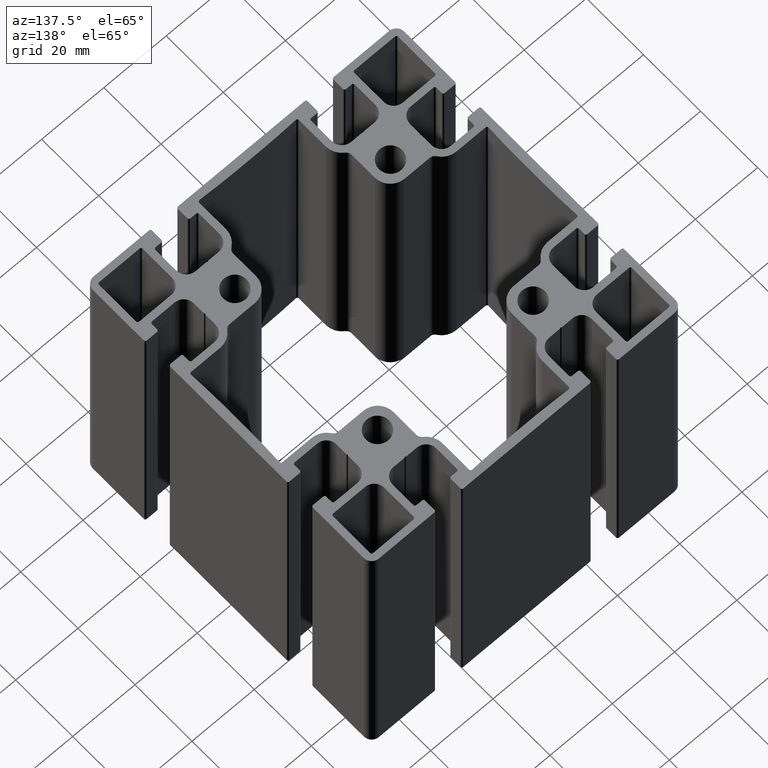
[diagram: clean part render]
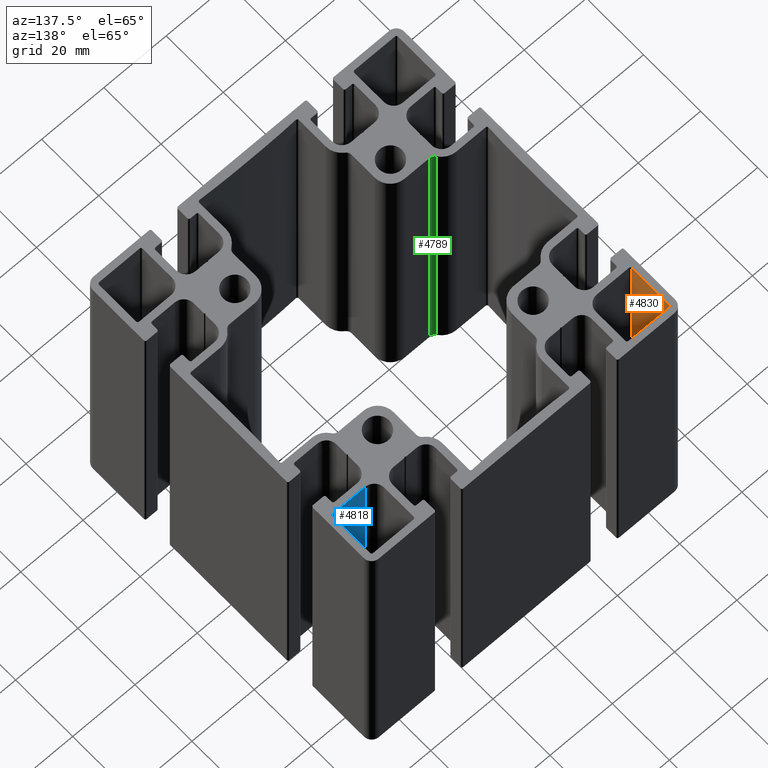
[diagram: same view with three faces highlighted in distinct colors, each labeled with its STEP entity id]
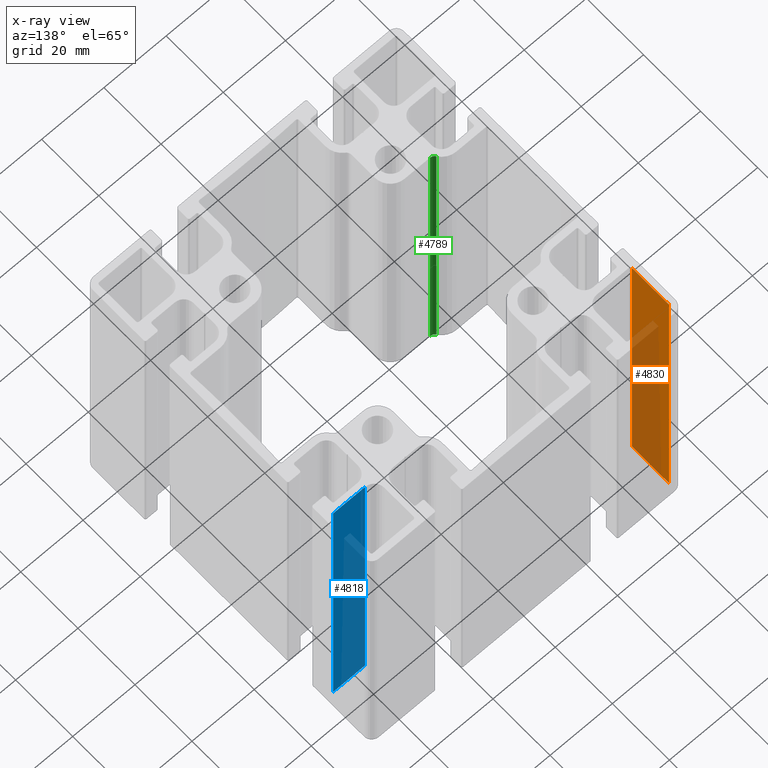
[diagram: x-ray of the same camera — body ghosted, the three highlighted faces saturated]
A machine part, auxiliary view with three faces highlighted in distinct colors.
The next image is the same camera in x-ray (body ghosted, the three faces saturated) — at least one of them is partly hidden behind the body in this view.
Their STEP definitions:

[orange] entity #4830 — the highlighted planar face has unit normal (-1, -0, 0).
#482=FACE_OUTER_BOUND('',#732,.T.);
#732=EDGE_LOOP('',(#3443,#3444,#3445,#3446));
#1056=LINE('',#7437,#1548);
#1057=LINE('',#7441,#1549);
#1058=LINE('',#7443,#1550);
#1059=LINE('',#7444,#1551);
#1548=VECTOR('',#5966,100.);
#1549=VECTOR('',#5971,13.0000000000001);
#1550=VECTOR('',#5972,100.);
#1551=VECTOR('',#5973,13.0000000000001);
#2061=VERTEX_POINT('',#7434);
#2062=VERTEX_POINT('',#7436);
#2063=VERTEX_POINT('',#7440);
#2064=VERTEX_POINT('',#7442);
#2629=EDGE_CURVE('',#2061,#2062,#1056,.T.);
#2631=EDGE_CURVE('',#2063,#2061,#1057,.T.);
#2632=EDGE_CURVE('',#2063,#2064,#1058,.T.);
#2633=EDGE_CURVE('',#2062,#2064,#1059,.T.);
#3443=ORIENTED_EDGE('',*,*,#2631,.F.);
#3444=ORIENTED_EDGE('',*,*,#2632,.T.);
#3445=ORIENTED_EDGE('',*,*,#2633,.F.);
#3446=ORIENTED_EDGE('',*,*,#2629,.F.);
#4657=PLANE('',#5176);
#4830=ADVANCED_FACE('',(#482),#4657,.F.);
#5176=AXIS2_PLACEMENT_3D('',#7439,#5969,#5970);
#5966=DIRECTION('',(0.,0.,1.));
#5969=DIRECTION('center_axis',(-1.,-1.36642833800018E-15,0.));
#5970=DIRECTION('ref_axis',(1.4210854715202E-15,-1.,0.));
#5971=DIRECTION('',(1.36642833800018E-15,-1.,0.));
#5972=DIRECTION('',(0.,0.,1.));
#5973=DIRECTION('',(-1.36642833800018E-15,1.,0.));
#7434=CARTESIAN_POINT('',(-48.000000000003,34.4999999999197,0.));
#7436=CARTESIAN_POINT('',(-48.000000000003,34.4999999999197,100.));
#7437=CARTESIAN_POINT('',(-48.000000000003,34.4999999999197,0.));
#7439=CARTESIAN_POINT('Origin',(-48.000000000003,47.4999999999198,0.));
#7440=CARTESIAN_POINT('',(-48.000000000003,47.4999999999198,0.));
#7441=CARTESIAN_POINT('',(-48.000000000003,23.7499999999442,0.));
#7442=CARTESIAN_POINT('',(-48.000000000003,47.4999999999198,100.));
#7443=CARTESIAN_POINT('',(-48.000000000003,47.4999999999198,0.));
#7444=CARTESIAN_POINT('',(-48.000000000003,23.7499999999442,100.));

[blue] entity #4818 — the highlighted planar face has unit normal (0, -1, 0).
#470=FACE_OUTER_BOUND('',#720,.T.);
#720=EDGE_LOOP('',(#3395,#3396,#3397,#3398));
#1031=LINE('',#7363,#1523);
#1033=LINE('',#7369,#1525);
#1034=LINE('',#7371,#1526);
#1035=LINE('',#7372,#1527);
#1523=VECTOR('',#5893,100.);
#1525=VECTOR('',#5899,10.2999999999999);
#1526=VECTOR('',#5900,100.);
#1527=VECTOR('',#5901,10.2999999999999);
#2035=VERTEX_POINT('',#7359);
#2037=VERTEX_POINT('',#7362);
#2039=VERTEX_POINT('',#7368);
#2040=VERTEX_POINT('',#7370);
#2592=EDGE_CURVE('',#2035,#2037,#1031,.T.);
#2595=EDGE_CURVE('',#2039,#2035,#1033,.T.);
#2596=EDGE_CURVE('',#2039,#2040,#1034,.T.);
#2597=EDGE_CURVE('',#2037,#2040,#1035,.T.);
#3395=ORIENTED_EDGE('',*,*,#2595,.F.);
#3396=ORIENTED_EDGE('',*,*,#2596,.T.);
#3397=ORIENTED_EDGE('',*,*,#2597,.F.);
#3398=ORIENTED_EDGE('',*,*,#2592,.F.);
#4651=PLANE('',#5152);
#4818=ADVANCED_FACE('',(#470),#4651,.F.);
#5152=AXIS2_PLACEMENT_3D('',#7367,#5897,#5898);
#5893=DIRECTION('',(0.,0.,1.));
#5897=DIRECTION('center_axis',(3.6768861957295E-12,-1.,0.));
#5898=DIRECTION('ref_axis',(1.,3.67705865755852E-12,0.));
#5899=DIRECTION('',(1.,3.6768861957295E-12,0.));
#5900=DIRECTION('',(0.,0.,1.));
#5901=DIRECTION('',(-1.,-3.6768861957295E-12,0.));
#7359=CARTESIAN_POINT('',(47.4999999997199,34.0000000000946,0.));
#7362=CARTESIAN_POINT('',(47.4999999997199,34.0000000000946,100.));
#7363=CARTESIAN_POINT('',(47.4999999997199,34.0000000000946,0.));
#7367=CARTESIAN_POINT('Origin',(37.19999999972,34.0000000000567,0.));
#7368=CARTESIAN_POINT('',(37.19999999972,34.0000000000567,0.));
#7369=CARTESIAN_POINT('',(18.5999999997668,33.9999999999883,0.));
#7370=CARTESIAN_POINT('',(37.19999999972,34.0000000000567,100.));
#7371=CARTESIAN_POINT('',(37.19999999972,34.0000000000567,0.));
#7372=CARTESIAN_POINT('',(18.5999999997668,33.9999999999883,100.));

[green] entity #4789 — the highlighted cylindrical surface (edge-blend (fillet) strip) has radius 1.7 mm, axis along (0, 0, 1).
#79=CIRCLE('',#5084,1.69999999999469);
#80=CIRCLE('',#5085,1.69999999999469);
#306=CYLINDRICAL_SURFACE('',#5083,1.69999999999469);
#441=FACE_OUTER_BOUND('',#691,.T.);
#691=EDGE_LOOP('',(#3279,#3280,#3281,#3282));
#984=LINE('',#7191,#1476);
#986=LINE('',#7197,#1478);
#1476=VECTOR('',#5710,100.);
#1478=VECTOR('',#5716,100.);
#1979=VERTEX_POINT('',#7188);
#1980=VERTEX_POINT('',#7190);
#1981=VERTEX_POINT('',#7194);
#1982=VERTEX_POINT('',#7196);
#2506=EDGE_CURVE('',#1979,#1980,#984,.T.);
#2508=EDGE_CURVE('',#1981,#1979,#79,.T.);
#2509=EDGE_CURVE('',#1981,#1982,#986,.T.);
#2510=EDGE_CURVE('',#1980,#1982,#80,.T.);
#3279=ORIENTED_EDGE('',*,*,#2508,.F.);
#3280=ORIENTED_EDGE('',*,*,#2509,.T.);
#3281=ORIENTED_EDGE('',*,*,#2510,.F.);
#3282=ORIENTED_EDGE('',*,*,#2506,.F.);
#4789=ADVANCED_FACE('',(#441),#306,.F.);
#5083=AXIS2_PLACEMENT_3D('',#7193,#5712,#5713);
#5084=AXIS2_PLACEMENT_3D('',#7195,#5714,#5715);
#5085=AXIS2_PLACEMENT_3D('',#7198,#5717,#5718);
#5710=DIRECTION('',(0.,0.,1.));
#5712=DIRECTION('center_axis',(0.,0.,1.));
#5713=DIRECTION('ref_axis',(-0.829860438253965,-0.557971014498905,0.));
#5714=DIRECTION('center_axis',(0.,0.,1.));
#5715=DIRECTION('ref_axis',(-0.829860438253965,-0.557971014498905,0.));
#5716=DIRECTION('',(0.,0.,1.));
#5717=DIRECTION('center_axis',(0.,0.,-1.));
#5718=DIRECTION('ref_axis',(-0.829860438253965,-0.557971014498905,0.));
#7188=CARTESIAN_POINT('',(-32.1739629758952,-19.0499999999478,0.));
#7190=CARTESIAN_POINT('',(-32.1739629758952,-19.0499999999478,100.));
#7191=CARTESIAN_POINT('',(-32.1739629758952,-19.0499999999478,0.));
#7193=CARTESIAN_POINT('Origin',(-32.1739629759011,-17.3499999999532,0.));
#7194=CARTESIAN_POINT('',(-33.5847257209284,-18.2985507245983,0.));
#7195=CARTESIAN_POINT('Origin',(-32.1739629759011,-17.3499999999532,0.));
#7196=CARTESIAN_POINT('',(-33.5847257209284,-18.2985507245983,100.));
#7197=CARTESIAN_POINT('',(-33.5847257209284,-18.2985507245983,0.));
#7198=CARTESIAN_POINT('Origin',(-32.1739629759011,-17.3499999999532,100.));